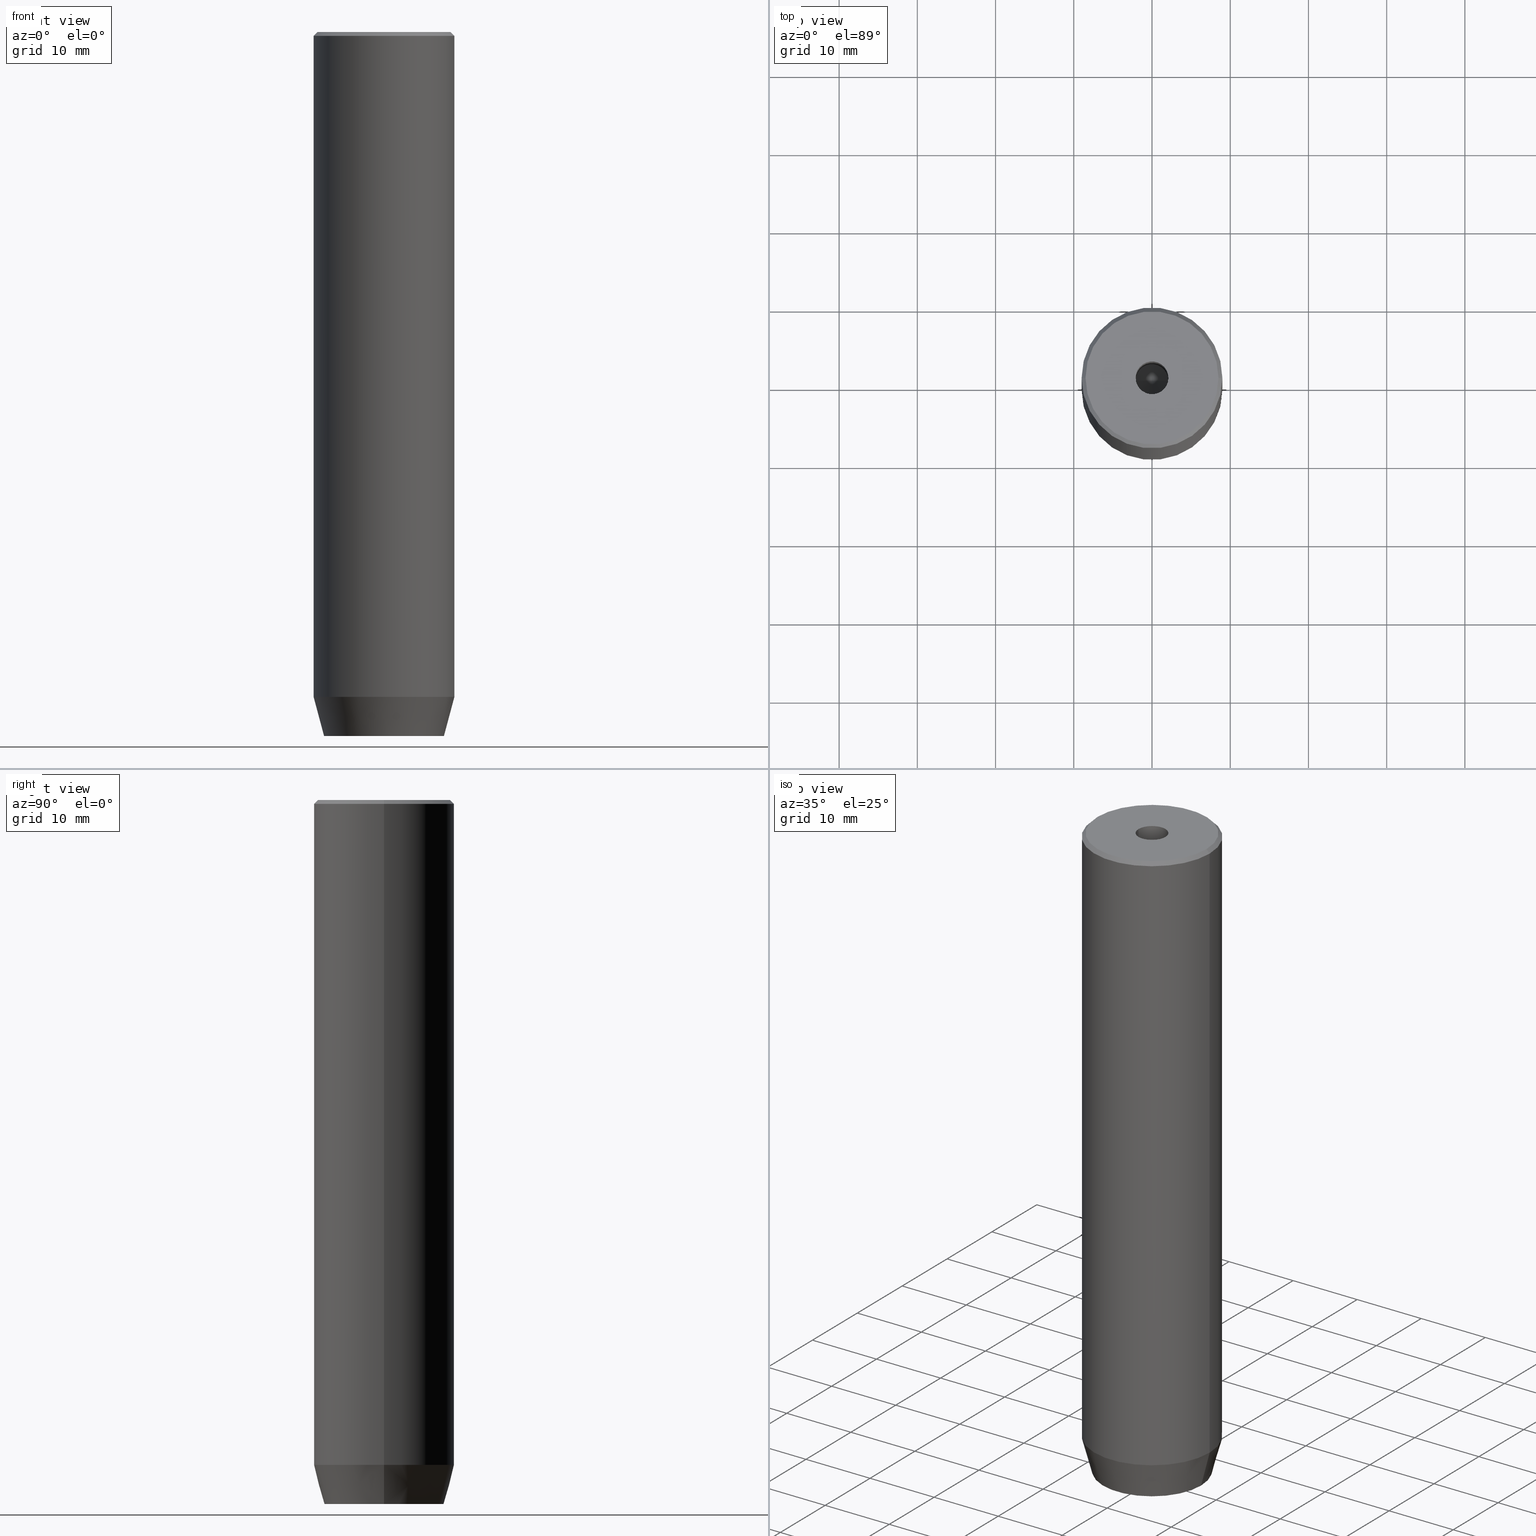
[diagram: canonical four-view strip — front | top / right | iso, engineering-drawing reading convention]
A machine part, canonical four-view strip (front | top / right | iso — engineering-drawing reading convention). The complete STEP part file that produces these views, byte-faithful:
ISO-10303-21;
HEADER;
FILE_DESCRIPTION (( 'STEP AP203' ),
    '1' );
FILE_NAME ('4dfa.STEP',
    '2024-01-02T20:37:19',
    ( '' ),
    ( '' ),
    'SwSTEP 2.0',
    'SolidWorks 2019',
    '' );
FILE_SCHEMA (( 'CONFIG_CONTROL_DESIGN' ));
ENDSEC;

DATA;
#1 = CIRCLE ( 'NONE', #299, 8.500000000000007105 ) ;
#2 = EDGE_LOOP ( 'NONE', ( #330, #153, #549, #481 ) ) ;
#3 = PRODUCT_RELATED_PRODUCT_CATEGORY ( 'detail', '', ( #408 ) ) ;
#4 = LINE ( 'NONE', #494, #233 ) ;
#5 = ORIENTED_EDGE ( 'NONE', *, *, #108, .T. ) ;
#6 = ORIENTED_EDGE ( 'NONE', *, *, #15, .T. ) ;
#7 = DIRECTION ( 'NONE',  ( -0.8660254037844385966, -0.5000000000000001110, 0.000000000000000000 ) ) ;
#8 = CARTESIAN_POINT ( 'NONE',  ( -9.000000000000000000, 1.102182119232617714E-15, -84.99999999999998579 ) ) ;
#9 = CARTESIAN_POINT ( 'NONE',  ( -9.000000000000000000, 1.102182119232617714E-15, -84.99999999999998579 ) ) ;
#10 = AXIS2_PLACEMENT_3D ( 'NONE', #352, #221, #393 ) ;
#11 = EDGE_LOOP ( 'NONE', ( #461, #198, #224, #582 ) ) ;
#12 = DIRECTION ( 'NONE',  ( -0.000000000000000000, -0.000000000000000000, -1.000000000000000000 ) ) ;
#13 = ORIENTED_EDGE ( 'NONE', *, *, #395, .F. ) ;
#14 = DIRECTION ( 'NONE',  ( -0.000000000000000000, -0.000000000000000000, 1.000000000000000000 ) ) ;
#15 = EDGE_CURVE ( 'NONE', #277, #500, #61, .T. ) ;
#16 = CARTESIAN_POINT ( 'NONE',  ( 0.000000000000000000, 0.000000000000000000, 0.000000000000000000 ) ) ;
#17 = EDGE_CURVE ( 'NONE', #40, #560, #451, .T. ) ;
#18 = DIRECTION ( 'NONE',  ( -0.7071067811865451302, 0.000000000000000000, -0.7071067811865500152 ) ) ;
#19 = ORIENTED_EDGE ( 'NONE', *, *, #377, .T. ) ;
#20 = AXIS2_PLACEMENT_3D ( 'NONE', #303, #262, #491 ) ;
#21 = CARTESIAN_POINT ( 'NONE',  ( 9.000000000000000000, 0.000000000000000000, -0.4999999999999952260 ) ) ;
#22 = CARTESIAN_POINT ( 'NONE',  ( 0.000000000000000000, 0.000000000000000000, 0.000000000000000000 ) ) ;
#23 = ORIENTED_EDGE ( 'NONE', *, *, #38, .T. ) ;
#24 = LINE ( 'NONE', #527, #561 ) ;
#25 = DIRECTION ( 'NONE',  ( 0.8660254037844385966, -0.5000000000000001110, 0.000000000000000000 ) ) ;
#26 = CYLINDRICAL_SURFACE ( 'NONE', #324, 9.000000000000000000 ) ;
#27 = VECTOR ( 'NONE', #183, 1000.000000000000000 ) ;
#28 = COORDINATED_UNIVERSAL_TIME_OFFSET ( 1, 0, .AHEAD. ) ;
#29 = VECTOR ( 'NONE', #538, 1000.000000000000114 ) ;
#30 = VECTOR ( 'NONE', #7, 1000.000000000000000 ) ;
#31 = CARTESIAN_POINT ( 'NONE',  ( -2.099999999999996092, 2.571758278209436534E-16, -20.00000000000000000 ) ) ;
#32 = ORIENTED_EDGE ( 'NONE', *, *, #317, .F. ) ;
#33 =( NAMED_UNIT ( * ) PLANE_ANGLE_UNIT ( ) SI_UNIT ( $, .RADIAN. ) );
#34 = DIRECTION ( 'NONE',  ( -1.000000000000000000, -2.503857664561933362E-16, 0.000000000000000000 ) ) ;
#35 = EDGE_LOOP ( 'NONE', ( #138, #521, #581, #144 ) ) ;
#36 = DIRECTION ( 'NONE',  ( 0.000000000000000000, 0.000000000000000000, 1.000000000000000000 ) ) ;
#37 = EDGE_CURVE ( 'NONE', #190, #355, #390, .T. ) ;
#38 = EDGE_CURVE ( 'NONE', #355, #156, #181, .T. ) ;
#39 = FACE_OUTER_BOUND ( 'NONE', #291, .T. ) ;
#40 = VERTEX_POINT ( 'NONE', #133 ) ;
#41 = FACE_OUTER_BOUND ( 'NONE', #449, .T. ) ;
#42 = AXIS2_PLACEMENT_3D ( 'NONE', #58, #520, #117 ) ;
#43 = ORIENTED_EDGE ( 'NONE', *, *, #108, .F. ) ;
#44 = PERSON_AND_ORGANIZATION_ROLE ( 'design_owner' ) ;
#45 = EDGE_CURVE ( 'NONE', #586, #294, #360, .T. ) ;
#46 = DATE_AND_TIME ( #230, #131 ) ;
#47 = LINE ( 'NONE', #93, #456 ) ;
#48 = ORIENTED_EDGE ( 'NONE', *, *, #546, .F. ) ;
#49 = COORDINATED_UNIVERSAL_TIME_OFFSET ( 1, 0, .AHEAD. ) ;
#50 = VECTOR ( 'NONE', #12, 1000.000000000000000 ) ;
#51 = ORIENTED_EDGE ( 'NONE', *, *, #295, .F. ) ;
#52 = APPROVAL_DATE_TIME ( #95, #338 ) ;
#53 = DIRECTION ( 'NONE',  ( 1.000000000000000000, 0.000000000000000000, -0.000000000000000000 ) ) ;
#54 = EDGE_LOOP ( 'NONE', ( #570, #489, #94, #423 ) ) ;
#55 = ORIENTED_EDGE ( 'NONE', *, *, #333, .F. ) ;
#56 = SECURITY_CLASSIFICATION_LEVEL ( 'unclassified' ) ;
#57 = DIRECTION ( 'NONE',  ( -0.000000000000000000, -0.000000000000000000, -1.000000000000000000 ) ) ;
#58 = CARTESIAN_POINT ( 'NONE',  ( 1.500000000000000222, -2.598076211353315568, -87.20000000000000284 ) ) ;
#59 = EDGE_LOOP ( 'NONE', ( #216, #43, #107, #326 ) ) ;
#60 = CARTESIAN_POINT ( 'NONE',  ( -2.168404344971008868E-16, -3.464101615137754830, -87.20000000000000284 ) ) ;
#61 = CIRCLE ( 'NONE', #578, 2.099999999999998757 ) ;
#62 = AXIS2_PLACEMENT_3D ( 'NONE', #340, #522, #72 ) ;
#63 = ORIENTED_EDGE ( 'NONE', *, *, #232, .F. ) ;
#64 = DIRECTION ( 'NONE',  ( 0.000000000000000000, 0.000000000000000000, -1.000000000000000000 ) ) ;
#65 = EDGE_CURVE ( 'NONE', #287, #495, #540, .T. ) ;
#66 = EDGE_CURVE ( 'NONE', #287, #193, #47, .T. ) ;
#67 = DIRECTION ( 'NONE',  ( 1.000000000000000000, 0.000000000000000000, 0.000000000000000000 ) ) ;
#68 = EDGE_LOOP ( 'NONE', ( #159, #511, #6, #48 ) ) ;
#69 = LINE ( 'NONE', #325, #562 ) ;
#70 = DIRECTION ( 'NONE',  ( 0.000000000000000000, 0.000000000000000000, -1.000000000000000000 ) ) ;
#71 = AXIS2_PLACEMENT_3D ( 'NONE', #424, #53, #166 ) ;
#72 = DIRECTION ( 'NONE',  ( 1.000000000000000000, 0.000000000000000000, 0.000000000000000000 ) ) ;
#73 = FACE_OUTER_BOUND ( 'NONE', #11, .T. ) ;
#74 = ORIENTED_EDGE ( 'NONE', *, *, #395, .T. ) ;
#75 = DIRECTION ( 'NONE',  ( 0.000000000000000000, -0.000000000000000000, 1.000000000000000000 ) ) ;
#76 = CARTESIAN_POINT ( 'NONE',  ( -3.000000000000000444, -7.511572993685800087E-16, -87.20000000000000284 ) ) ;
#77 = APPROVAL_STATUS ( 'not_yet_approved' ) ;
#78 = DIRECTION ( 'NONE',  ( -0.000000000000000000, -0.000000000000000000, -1.000000000000000000 ) ) ;
#79 = VECTOR ( 'NONE', #273, 1000.000000000000000 ) ;
#80 = CARTESIAN_POINT ( 'NONE',  ( 3.000000000000000000, 1.732050807568876527, -87.20000000000000284 ) ) ;
#81 = CONICAL_SURFACE ( 'NONE', #122, 2.099999999999996092, 1.029744258676652091 ) ;
#82 = UNCERTAINTY_MEASURE_WITH_UNIT (LENGTH_MEASURE( 1.000000000000000082E-05 ), #580, 'distance_accuracy_value', 'NONE');
#83 = DIRECTION ( 'NONE',  ( 1.000000000000000000, 0.000000000000000000, 0.000000000000000000 ) ) ;
#84 = EDGE_CURVE ( 'NONE', #102, #200, #226, .T. ) ;
#85 = EDGE_CURVE ( 'NONE', #193, #40, #543, .T. ) ;
#86 = DIRECTION ( 'NONE',  ( -0.4999999999999999445, 0.8660254037844387076, 0.000000000000000000 ) ) ;
#87 = DIRECTION ( 'NONE',  ( 0.000000000000000000, -1.000000000000000000, 0.000000000000000000 ) ) ;
#88 = DIRECTION ( 'NONE',  ( -0.2588190451025214611, 3.169619151431774186E-17, 0.9659258262890679791 ) ) ;
#89 = DIRECTION ( 'NONE',  ( 1.000000000000000000, 0.000000000000000000, 0.000000000000000000 ) ) ;
#90 = CIRCLE ( 'NONE', #195, 2.099999999999996092 ) ;
#91 = VECTOR ( 'NONE', #223, 1000.000000000000000 ) ;
#92 = DIRECTION ( 'NONE',  ( -0.000000000000000000, -0.000000000000000000, 1.000000000000000000 ) ) ;
#93 = CARTESIAN_POINT ( 'NONE',  ( 1.500000000000000222, -2.598076211353315568, -87.20000000000000284 ) ) ;
#94 = ORIENTED_EDGE ( 'NONE', *, *, #66, .F. ) ;
#95 = DATE_AND_TIME ( #507, #519 ) ;
#96 = CARTESIAN_POINT ( 'NONE',  ( -1.500000000000000666, -2.598076211353316456, -87.20000000000000284 ) ) ;
#97 = ORIENTED_EDGE ( 'NONE', *, *, #188, .F. ) ;
#98 = ORIENTED_EDGE ( 'NONE', *, *, #188, .T. ) ;
#99 = CIRCLE ( 'NONE', #109, 2.099999999999998757 ) ;
#100 = CARTESIAN_POINT ( 'NONE',  ( -9.000000000000000000, 1.102182119232617714E-15, 0.000000000000000000 ) ) ;
#101 = CONICAL_SURFACE ( 'NONE', #219, 2.099999999999996092, 1.029744258676652091 ) ;
#102 = VERTEX_POINT ( 'NONE', #199 ) ;
#103 = ADVANCED_FACE ( 'NONE', ( #554 ), #334, .F. ) ;
#104 = ORIENTED_EDGE ( 'NONE', *, *, #210, .T. ) ;
#105 = FACE_OUTER_BOUND ( 'NONE', #54, .T. ) ;
#106 = DIRECTION ( 'NONE',  ( -0.5000000000000001110, -0.8660254037844385966, 0.000000000000000000 ) ) ;
#107 = ORIENTED_EDGE ( 'NONE', *, *, #217, .T. ) ;
#108 = EDGE_CURVE ( 'NONE', #506, #452, #1, .T. ) ;
#109 = AXIS2_PLACEMENT_3D ( 'NONE', #114, #292, #473 ) ;
#110 = CARTESIAN_POINT ( 'NONE',  ( 0.000000000000000000, 0.000000000000000000, 0.000000000000000000 ) ) ;
#111 =( GEOMETRIC_REPRESENTATION_CONTEXT ( 3 ) GLOBAL_UNCERTAINTY_ASSIGNED_CONTEXT ( ( #82 ) ) GLOBAL_UNIT_ASSIGNED_CONTEXT ( ( #580, #33, #180 ) ) REPRESENTATION_CONTEXT ( 'NONE', 'WORKASPACE' ) );
#112 = PRODUCT_DEFINITION_SHAPE ( 'NONE', 'NONE',  #266 ) ;
#113 = AXIS2_PLACEMENT_3D ( 'NONE', #16, #381, #472 ) ;
#114 = CARTESIAN_POINT ( 'NONE',  ( 0.000000000000000000, 0.000000000000000000, -1.990051048614449116E-16 ) ) ;
#115 = EDGE_LOOP ( 'NONE', ( #263, #328, #251, #134, #373, #455 ) ) ;
#116 = FACE_OUTER_BOUND ( 'NONE', #335, .T. ) ;
#117 = DIRECTION ( 'NONE',  ( 0.8660254037844385966, 0.5000000000000001110, 0.000000000000000000 ) ) ;
#118 = CARTESIAN_POINT ( 'NONE',  ( 0.000000000000000000, 0.000000000000000000, -20.00000000000000000 ) ) ;
#119 = LINE ( 'NONE', #132, #231 ) ;
#120 = ORIENTED_EDGE ( 'NONE', *, *, #38, .F. ) ;
#121 = AXIS2_PLACEMENT_3D ( 'NONE', #523, #106, #152 ) ;
#122 = AXIS2_PLACEMENT_3D ( 'NONE', #137, #92, #320 ) ;
#123 = CARTESIAN_POINT ( 'NONE',  ( -8.500000000000007105, 0.000000000000000000, 0.000000000000000000 ) ) ;
#124 = DIRECTION ( 'NONE',  ( 0.7071067811865451302, 8.659560562354903276E-17, -0.7071067811865500152 ) ) ;
#125 = PLANE ( 'NONE',  #531 ) ;
#126 = CARTESIAN_POINT ( 'NONE',  ( 3.000000000000000000, 1.732050807568876527, -87.20000000000000284 ) ) ;
#127 = CARTESIAN_POINT ( 'NONE',  ( -3.000000000000000444, -7.511572993685800087E-16, -90.00000000000000000 ) ) ;
#128 = EDGE_CURVE ( 'NONE', #40, #102, #284, .T. ) ;
#129 = DIRECTION ( 'NONE',  ( -0.000000000000000000, -0.000000000000000000, 1.000000000000000000 ) ) ;
#130 = ADVANCED_FACE ( 'NONE', ( #375 ), #400, .T. ) ;
#131 = LOCAL_TIME ( 21, 37, 19.00000000000000000, #182 ) ;
#132 = CARTESIAN_POINT ( 'NONE',  ( -2.099999999999997424, 2.571758278209438506E-16, 0.000000000000000000 ) ) ;
#133 = CARTESIAN_POINT ( 'NONE',  ( -3.000000000000000000, -1.732050807568877859, -87.20000000000000284 ) ) ;
#134 = ORIENTED_EDGE ( 'NONE', *, *, #412, .F. ) ;
#135 = VECTOR ( 'NONE', #357, 1000.000000000000000 ) ;
#136 = VECTOR ( 'NONE', #444, 1000.000000000000000 ) ;
#137 = CARTESIAN_POINT ( 'NONE',  ( 0.000000000000000000, 0.000000000000000000, -20.00000000000000000 ) ) ;
#138 = ORIENTED_EDGE ( 'NONE', *, *, #210, .F. ) ;
#139 = PERSON_AND_ORGANIZATION_ROLE ( 'design_supplier' ) ;
#140 = VERTEX_POINT ( 'NONE', #419 ) ;
#141 = ORIENTED_EDGE ( 'NONE', *, *, #128, .T. ) ;
#142 = APPROVAL_DATE_TIME ( #545, #569 ) ;
#143 = ADVANCED_FACE ( 'NONE', ( #105 ), #513, .F. ) ;
#144 = ORIENTED_EDGE ( 'NONE', *, *, #217, .F. ) ;
#145 = EDGE_CURVE ( 'NONE', #102, #367, #429, .T. ) ;
#146 = APPROVAL_STATUS ( 'not_yet_approved' ) ;
#147 = VECTOR ( 'NONE', #197, 1000.000000000000000 ) ;
#148 = CARTESIAN_POINT ( 'NONE',  ( 8.500000000000007105, 1.071565949253934321E-15, 0.000000000000000000 ) ) ;
#149 = VECTOR ( 'NONE', #225, 1000.000000000000000 ) ;
#150 = CARTESIAN_POINT ( 'NONE',  ( -3.000000000000000444, -7.511572993685800087E-16, -87.20000000000000284 ) ) ;
#151 = CC_DESIGN_DATE_AND_TIME_ASSIGNMENT ( #322, #315, ( #468 ) ) ;
#152 = DIRECTION ( 'NONE',  ( 0.8660254037844385966, -0.5000000000000001110, 0.000000000000000000 ) ) ;
#153 = ORIENTED_EDGE ( 'NONE', *, *, #333, .T. ) ;
#154 = ADVANCED_FACE ( 'NONE', ( #240 ), #288, .T. ) ;
#155 = CARTESIAN_POINT ( 'NONE',  ( 0.000000000000000000, 0.000000000000000000, -84.99999999999998579 ) ) ;
#156 = VERTEX_POINT ( 'NONE', #9 ) ;
#157 = CIRCLE ( 'NONE', #467, 7.660254037844380193 ) ;
#158 = CC_DESIGN_APPROVAL ( #569, ( #266 ) ) ;
#159 = ORIENTED_EDGE ( 'NONE', *, *, #293, .F. ) ;
#160 = CYLINDRICAL_SURFACE ( 'NONE', #332, 9.000000000000000000 ) ;
#161 = DIRECTION ( 'NONE',  ( -0.000000000000000000, -0.000000000000000000, 1.000000000000000000 ) ) ;
#162 = ORIENTED_EDGE ( 'NONE', *, *, #485, .T. ) ;
#163 = FACE_OUTER_BOUND ( 'NONE', #343, .T. ) ;
#164 = DIRECTION ( 'NONE',  ( -0.000000000000000000, -0.000000000000000000, 1.000000000000000000 ) ) ;
#165 = CC_DESIGN_PERSON_AND_ORGANIZATION_ASSIGNMENT ( #282, #453, ( #468 ) ) ;
#166 = DIRECTION ( 'NONE',  ( -0.000000000000000000, 0.000000000000000000, -1.000000000000000000 ) ) ;
#167 = DIRECTION ( 'NONE',  ( -0.000000000000000000, -0.000000000000000000, 1.000000000000000000 ) ) ;
#168 = AXIS2_PLACEMENT_3D ( 'NONE', #575, #307, #478 ) ;
#169 = VECTOR ( 'NONE', #57, 1000.000000000000000 ) ;
#170 = DIRECTION ( 'NONE',  ( -0.000000000000000000, -0.000000000000000000, 1.000000000000000000 ) ) ;
#171 = CARTESIAN_POINT ( 'NONE',  ( -9.000000000000000000, 1.102182119232617714E-15, -0.4999999999999952260 ) ) ;
#172 = EDGE_CURVE ( 'NONE', #515, #503, #383, .T. ) ;
#173 = DIRECTION ( 'NONE',  ( 0.8660254037844387076, 0.4999999999999999445, 0.000000000000000000 ) ) ;
#174 = FACE_OUTER_BOUND ( 'NONE', #301, .T. ) ;
#175 = PLANE ( 'NONE',  #238 ) ;
#176 = AXIS2_PLACEMENT_3D ( 'NONE', #179, #508, #234 ) ;
#177 = LINE ( 'NONE', #493, #149 ) ;
#178 = LOCAL_TIME ( 21, 37, 19.00000000000000000, #501 ) ;
#179 = CARTESIAN_POINT ( 'NONE',  ( 0.000000000000000000, 0.000000000000000000, -90.00000000000000000 ) ) ;
#180 =( NAMED_UNIT ( * ) SI_UNIT ( $, .STERADIAN. ) SOLID_ANGLE_UNIT ( ) );
#181 = LINE ( 'NONE', #8, #260 ) ;
#182 = COORDINATED_UNIVERSAL_TIME_OFFSET ( 1, 0, .AHEAD. ) ;
#183 = DIRECTION ( 'NONE',  ( -0.000000000000000000, -0.000000000000000000, -1.000000000000000000 ) ) ;
#184 = ORIENTED_EDGE ( 'NONE', *, *, #232, .T. ) ;
#185 = PERSON_AND_ORGANIZATION_ROLE ( 'creator' ) ;
#186 = APPLICATION_CONTEXT ( 'configuration controlled 3d designs of mechanical parts and assemblies' ) ;
#187 = ADVANCED_FACE ( 'NONE', ( #372 ), #202, .F. ) ;
#188 = EDGE_CURVE ( 'NONE', #500, #277, #99, .T. ) ;
#189 = EDGE_LOOP ( 'NONE', ( #162, #465, #236, #19 ) ) ;
#190 = VERTEX_POINT ( 'NONE', #469 ) ;
#191 = SHAPE_DEFINITION_REPRESENTATION ( #112, #321 ) ;
#192 = DIRECTION ( 'NONE',  ( -0.000000000000000000, -0.000000000000000000, 1.000000000000000000 ) ) ;
#193 = VERTEX_POINT ( 'NONE', #60 ) ;
#194 = DATE_AND_TIME ( #365, #178 ) ;
#195 = AXIS2_PLACEMENT_3D ( 'NONE', #532, #215, #571 ) ;
#196 = AXIS2_PLACEMENT_3D ( 'NONE', #296, #304, #433 ) ;
#197 = DIRECTION ( 'NONE',  ( -0.000000000000000000, -0.000000000000000000, 1.000000000000000000 ) ) ;
#198 = ORIENTED_EDGE ( 'NONE', *, *, #274, .F. ) ;
#199 = CARTESIAN_POINT ( 'NONE',  ( -3.000000000000000888, 1.732050807568876527, -87.20000000000000284 ) ) ;
#200 = VERTEX_POINT ( 'NONE', #470 ) ;
#201 = CC_DESIGN_PERSON_AND_ORGANIZATION_ASSIGNMENT ( #496, #44, ( #408 ) ) ;
#202 = PLANE ( 'NONE',  #121 ) ;
#203 = ORIENTED_EDGE ( 'NONE', *, *, #37, .F. ) ;
#204 = PLANE ( 'NONE',  #196 ) ;
#205 = AXIS2_PLACEMENT_3D ( 'NONE', #516, #64, #337 ) ;
#206 = LINE ( 'NONE', #568, #407 ) ;
#207 = ORIENTED_EDGE ( 'NONE', *, *, #172, .F. ) ;
#208 = CARTESIAN_POINT ( 'NONE',  ( 9.000000000000000000, 0.000000000000000000, -84.99999999999998579 ) ) ;
#209 = ADVANCED_FACE ( 'NONE', ( #286, #327 ), #329, .T. ) ;
#210 = EDGE_CURVE ( 'NONE', #452, #506, #218, .T. ) ;
#211 = ORIENTED_EDGE ( 'NONE', *, *, #247, .F. ) ;
#212 = CARTESIAN_POINT ( 'NONE',  ( 2.099999999999998757, 0.000000000000000000, -1.990051048614449116E-16 ) ) ;
#213 = CARTESIAN_POINT ( 'NONE',  ( 0.000000000000000000, 0.000000000000000000, -20.00000000000000000 ) ) ;
#214 = DIRECTION ( 'NONE',  ( 1.000000000000000000, 0.000000000000000000, 0.000000000000000000 ) ) ;
#215 = DIRECTION ( 'NONE',  ( -0.000000000000000000, -0.000000000000000000, 1.000000000000000000 ) ) ;
#216 = ORIENTED_EDGE ( 'NONE', *, *, #272, .F. ) ;
#217 = EDGE_CURVE ( 'NONE', #506, #323, #245, .T. ) ;
#218 = CIRCLE ( 'NONE', #448, 8.500000000000007105 ) ;
#219 = AXIS2_PLACEMENT_3D ( 'NONE', #118, #192, #369 ) ;
#220 = CARTESIAN_POINT ( 'NONE',  ( 3.000000000000000000, -1.732050807568876527, -87.20000000000000284 ) ) ;
#221 = DIRECTION ( 'NONE',  ( -0.000000000000000000, -0.000000000000000000, 1.000000000000000000 ) ) ;
#222 = CARTESIAN_POINT ( 'NONE',  ( 0.000000000000000000, 0.000000000000000000, -87.20000000000000284 ) ) ;
#223 = DIRECTION ( 'NONE',  ( -0.000000000000000000, -0.000000000000000000, 1.000000000000000000 ) ) ;
#224 = ORIENTED_EDGE ( 'NONE', *, *, #84, .F. ) ;
#225 = DIRECTION ( 'NONE',  ( -0.000000000000000000, -0.000000000000000000, 1.000000000000000000 ) ) ;
#226 = LINE ( 'NONE', #405, #476 ) ;
#227 = PERSON_AND_ORGANIZATION ( #454, #239 ) ;
#228 = DIRECTION ( 'NONE',  ( -0.8660254037844385966, -0.5000000000000001110, 0.000000000000000000 ) ) ;
#229 = EDGE_CURVE ( 'NONE', #367, #586, #206, .T. ) ;
#230 = CALENDAR_DATE ( 2024, 2, 1 ) ;
#231 = VECTOR ( 'NONE', #394, 1000.000000000000000 ) ;
#232 = EDGE_CURVE ( 'NONE', #355, #190, #157, .T. ) ;
#233 = VECTOR ( 'NONE', #447, 1000.000000000000000 ) ;
#234 = DIRECTION ( 'NONE',  ( 1.000000000000000000, 0.000000000000000000, 0.000000000000000000 ) ) ;
#235 = DIRECTION ( 'NONE',  ( 1.000000000000000000, 0.000000000000000000, 0.000000000000000000 ) ) ;
#236 = ORIENTED_EDGE ( 'NONE', *, *, #579, .F. ) ;
#237 = APPROVAL_STATUS ( 'not_yet_approved' ) ;
#238 = AXIS2_PLACEMENT_3D ( 'NONE', #346, #86, #480 ) ;
#239 = ORGANIZATION ( 'NEUR�EN�', 'NEUR�EN�', '' ) ;
#240 = FACE_OUTER_BOUND ( 'NONE', #281, .T. ) ;
#241 = ORIENTED_EDGE ( 'NONE', *, *, #311, .T. ) ;
#242 = DIRECTION ( 'NONE',  ( 1.000000000000000000, 0.000000000000000000, 0.000000000000000000 ) ) ;
#243 = ORIENTED_EDGE ( 'NONE', *, *, #564, .T. ) ;
#244 = FACE_OUTER_BOUND ( 'NONE', #189, .T. ) ;
#245 = LINE ( 'NONE', #425, #279 ) ;
#246 = ORIENTED_EDGE ( 'NONE', *, *, #420, .T. ) ;
#247 = EDGE_CURVE ( 'NONE', #471, #414, #438, .T. ) ;
#248 = LINE ( 'NONE', #344, #401 ) ;
#249 = ADVANCED_FACE ( 'NONE', ( #445 ), #577, .F. ) ;
#250 = CC_DESIGN_APPROVAL ( #253, ( #450 ) ) ;
#251 = ORIENTED_EDGE ( 'NONE', *, *, #524, .F. ) ;
#252 = CARTESIAN_POINT ( 'NONE',  ( 2.099999999999996092, 0.000000000000000000, -20.00000000000000000 ) ) ;
#253 = APPROVAL ( #237, 'NEUR�EN�' ) ;
#254 = CARTESIAN_POINT ( 'NONE',  ( -2.099999999999998757, 2.571758278209440478E-16, -1.990051048614449116E-16 ) ) ;
#255 = EDGE_LOOP ( 'NONE', ( #430, #426, #380, #364 ) ) ;
#256 = EDGE_CURVE ( 'NONE', #414, #277, #119, .T. ) ;
#257 = DIRECTION ( 'NONE',  ( 2.503857664561933362E-16, -1.000000000000000000, 0.000000000000000000 ) ) ;
#258 = APPLICATION_PROTOCOL_DEFINITION ( 'international standard', 'config_control_design', 1994, #186 ) ;
#259 = DIRECTION ( 'NONE',  ( -0.000000000000000000, -0.000000000000000000, -1.000000000000000000 ) ) ;
#260 = VECTOR ( 'NONE', #88, 1000.000000000000114 ) ;
#261 = CC_DESIGN_SECURITY_CLASSIFICATION ( #468, ( #450 ) ) ;
#262 = DIRECTION ( 'NONE',  ( -0.000000000000000000, -0.000000000000000000, 1.000000000000000000 ) ) ;
#263 = ORIENTED_EDGE ( 'NONE', *, *, #229, .F. ) ;
#264 = CARTESIAN_POINT ( 'NONE',  ( -7.660254037844380193, 1.020146339021394272E-15, -90.00000000000000000 ) ) ;
#265 = ORIENTED_EDGE ( 'NONE', *, *, #274, .T. ) ;
#266 = PRODUCT_DEFINITION ( 'NEZN�M�', '', #450, #341 ) ;
#267 = CARTESIAN_POINT ( 'NONE',  ( 1.500000000000000222, 2.598076211353315568, -90.00000000000000000 ) ) ;
#268 = AXIS2_PLACEMENT_3D ( 'NONE', #110, #70, #558 ) ;
#269 = CIRCLE ( 'NONE', #409, 9.000000000000000000 ) ;
#270 = ORIENTED_EDGE ( 'NONE', *, *, #295, .T. ) ;
#271 = APPROVAL_ROLE ( '' ) ;
#272 = EDGE_CURVE ( 'NONE', #452, #503, #24, .T. ) ;
#273 = DIRECTION ( 'NONE',  ( -0.8660254037844385966, 0.5000000000000001110, 0.000000000000000000 ) ) ;
#274 = EDGE_CURVE ( 'NONE', #200, #586, #300, .T. ) ;
#275 = MANIFOLD_SOLID_BREP ( 'Vrt�k z�vitn�ku pro M5 z�vit1', #314 ) ;
#276 = LINE ( 'NONE', #100, #91 ) ;
#277 = VERTEX_POINT ( 'NONE', #254 ) ;
#278 = EDGE_LOOP ( 'NONE', ( #211, #74, #241 ) ) ;
#279 = VECTOR ( 'NONE', #18, 1000.000000000000114 ) ;
#280 = EDGE_LOOP ( 'NONE', ( #97, #525 ) ) ;
#281 = EDGE_LOOP ( 'NONE', ( #120, #184, #270, #55 ) ) ;
#282 = PERSON_AND_ORGANIZATION ( #454, #239 ) ;
#283 = CARTESIAN_POINT ( 'NONE',  ( 3.000000000000000000, -1.732050807568876527, -90.00000000000000000 ) ) ;
#284 = LINE ( 'NONE', #150, #518 ) ;
#285 = ORIENTED_EDGE ( 'NONE', *, *, #66, .T. ) ;
#286 = FACE_BOUND ( 'NONE', #115, .T. ) ;
#287 = VERTEX_POINT ( 'NONE', #220 ) ;
#288 = CONICAL_SURFACE ( 'NONE', #345, 9.000000000000000000, 0.2617993877991502405 ) ;
#289 = LOCAL_TIME ( 21, 37, 19.00000000000000000, #49 ) ;
#290 = DIRECTION ( 'NONE',  ( -0.000000000000000000, -0.000000000000000000, 1.000000000000000000 ) ) ;
#291 = EDGE_LOOP ( 'NONE', ( #492, #417, #246, #207 ) ) ;
#292 = DIRECTION ( 'NONE',  ( -0.000000000000000000, -0.000000000000000000, 1.000000000000000000 ) ) ;
#293 = EDGE_CURVE ( 'NONE', #414, #514, #90, .T. ) ;
#294 = VERTEX_POINT ( 'NONE', #310 ) ;
#295 = EDGE_CURVE ( 'NONE', #190, #515, #432, .T. ) ;
#296 = CARTESIAN_POINT ( 'NONE',  ( 1.500000000000000222, 2.598076211353315568, -87.20000000000000284 ) ) ;
#297 = CARTESIAN_POINT ( 'NONE',  ( -3.000000000000000888, 1.732050807568876527, -87.20000000000000284 ) ) ;
#298 = FACE_OUTER_BOUND ( 'NONE', #35, .T. ) ;
#299 = AXIS2_PLACEMENT_3D ( 'NONE', #422, #14, #565 ) ;
#300 = LINE ( 'NONE', #536, #542 ) ;
#301 = EDGE_LOOP ( 'NONE', ( #460, #23, #32, #51 ) ) ;
#302 = DIRECTION ( 'NONE',  ( -0.8660254037844385966, 0.5000000000000001110, 0.000000000000000000 ) ) ;
#303 = CARTESIAN_POINT ( 'NONE',  ( 0.000000000000000000, 0.000000000000000000, -84.99999999999998579 ) ) ;
#304 = DIRECTION ( 'NONE',  ( 0.5000000000000001110, 0.8660254037844385966, -0.000000000000000000 ) ) ;
#305 = DIRECTION ( 'NONE',  ( 1.000000000000000000, 0.000000000000000000, 0.000000000000000000 ) ) ;
#306 = CARTESIAN_POINT ( 'NONE',  ( 0.000000000000000000, 3.464101615137754386, -90.00000000000000000 ) ) ;
#307 = DIRECTION ( 'NONE',  ( -0.000000000000000000, -0.000000000000000000, 1.000000000000000000 ) ) ;
#308 = AXIS2_PLACEMENT_3D ( 'NONE', #213, #167, #83 ) ;
#309 = CARTESIAN_POINT ( 'NONE',  ( 0.000000000000000000, 0.000000000000000000, 0.000000000000000000 ) ) ;
#310 = CARTESIAN_POINT ( 'NONE',  ( 3.000000000000000000, 1.732050807568876527, -90.00000000000000000 ) ) ;
#311 = EDGE_CURVE ( 'NONE', #514, #414, #418, .T. ) ;
#312 = DIRECTION ( 'NONE',  ( 1.000000000000000000, 0.000000000000000000, 0.000000000000000000 ) ) ;
#313 = CARTESIAN_POINT ( 'NONE',  ( 3.000000000000000000, -1.732050807568876527, -87.20000000000000284 ) ) ;
#314 = CLOSED_SHELL ( 'NONE', ( #103, #378, #459, #585, #358, #209, #526, #505, #154, #130, #353, #354, #187, #143, #504, #440, #547, #441, #249 ) ) ;
#315 = DATE_TIME_ROLE ( 'classification_date' ) ;
#316 = VECTOR ( 'NONE', #87, 1000.000000000000000 ) ;
#317 = EDGE_CURVE ( 'NONE', #515, #156, #382, .T. ) ;
#318 = EDGE_LOOP ( 'NONE', ( #384, #370, #541, #98 ) ) ;
#319 = PERSON_AND_ORGANIZATION ( #454, #239 ) ;
#320 = DIRECTION ( 'NONE',  ( 1.000000000000000000, 0.000000000000000000, 0.000000000000000000 ) ) ;
#321 = ADVANCED_BREP_SHAPE_REPRESENTATION ( '4dfa', ( #275, #347 ), #111 ) ;
#322 = DATE_AND_TIME ( #550, #289 ) ;
#323 = VERTEX_POINT ( 'NONE', #171 ) ;
#324 = AXIS2_PLACEMENT_3D ( 'NONE', #349, #164, #397 ) ;
#325 = CARTESIAN_POINT ( 'NONE',  ( 1.500000000000000222, 2.598076211353315568, -87.20000000000000284 ) ) ;
#326 = ORIENTED_EDGE ( 'NONE', *, *, #534, .F. ) ;
#327 = FACE_OUTER_BOUND ( 'NONE', #517, .T. ) ;
#328 = ORIENTED_EDGE ( 'NONE', *, *, #564, .F. ) ;
#329 = PLANE ( 'NONE',  #205 ) ;
#330 = ORIENTED_EDGE ( 'NONE', *, *, #396, .F. ) ;
#331 = AXIS2_PLACEMENT_3D ( 'NONE', #22, #161, #242 ) ;
#332 = AXIS2_PLACEMENT_3D ( 'NONE', #475, #170, #336 ) ;
#333 = EDGE_CURVE ( 'NONE', #156, #515, #537, .T. ) ;
#334 = CYLINDRICAL_SURFACE ( 'NONE', #331, 2.099999999999997424 ) ;
#335 = EDGE_LOOP ( 'NONE', ( #555, #410, #421, #265 ) ) ;
#336 = DIRECTION ( 'NONE',  ( 1.000000000000000000, 0.000000000000000000, 0.000000000000000000 ) ) ;
#337 = DIRECTION ( 'NONE',  ( -1.000000000000000000, 0.000000000000000000, -0.000000000000000000 ) ) ;
#338 = APPROVAL ( #146, 'NEUR�EN�' ) ;
#339 = EDGE_LOOP ( 'NONE', ( #13, #556, #403 ) ) ;
#340 = CARTESIAN_POINT ( 'NONE',  ( 0.000000000000000000, 0.000000000000000000, -0.4999999999999952260 ) ) ;
#341 = DESIGN_CONTEXT ( 'detailed design', #502, 'design' ) ;
#342 = CARTESIAN_POINT ( 'NONE',  ( -3.000000000000000888, 1.732050807568876527, -90.00000000000000000 ) ) ;
#343 = EDGE_LOOP ( 'NONE', ( #5, #104 ) ) ;
#344 = CARTESIAN_POINT ( 'NONE',  ( 3.000000000000000000, 0.000000000000000000, -90.00000000000000000 ) ) ;
#345 = AXIS2_PLACEMENT_3D ( 'NONE', #155, #290, #235 ) ;
#346 = CARTESIAN_POINT ( 'NONE',  ( -1.499999999999999556, 2.598076211353316012, -87.20000000000000284 ) ) ;
#347 = AXIS2_PLACEMENT_3D ( 'NONE', #309, #36, #399 ) ;
#348 = DIRECTION ( 'NONE',  ( 0.000000000000000000, -1.000000000000000000, 0.000000000000000000 ) ) ;
#349 = CARTESIAN_POINT ( 'NONE',  ( 0.000000000000000000, 0.000000000000000000, 0.000000000000000000 ) ) ;
#350 = CARTESIAN_POINT ( 'NONE',  ( -3.000000000000000000, -1.732050807568877859, -90.00000000000000000 ) ) ;
#351 = DIRECTION ( 'NONE',  ( -0.000000000000000000, -0.000000000000000000, 1.000000000000000000 ) ) ;
#352 = CARTESIAN_POINT ( 'NONE',  ( 0.000000000000000000, 0.000000000000000000, -84.99999999999998579 ) ) ;
#353 = ADVANCED_FACE ( 'NONE', ( #73 ), #175, .F. ) ;
#354 = ADVANCED_FACE ( 'NONE', ( #434 ), #443, .F. ) ;
#355 = VERTEX_POINT ( 'NONE', #264 ) ;
#356 = LINE ( 'NONE', #442, #316 ) ;
#357 = DIRECTION ( 'NONE',  ( 0.8660254037844385966, -0.5000000000000001110, 0.000000000000000000 ) ) ;
#358 = ADVANCED_FACE ( 'NONE', ( #39 ), #26, .T. ) ;
#359 = APPLICATION_PROTOCOL_DEFINITION ( 'international standard', 'config_control_design', 1994, #502 ) ;
#360 = LINE ( 'NONE', #267, #135 ) ;
#361 = VECTOR ( 'NONE', #551, 1000.000000000000000 ) ;
#362 = PERSON_AND_ORGANIZATION_ROLE ( 'creator' ) ;
#363 = CC_DESIGN_DATE_AND_TIME_ASSIGNMENT ( #194, #368, ( #266 ) ) ;
#364 = ORIENTED_EDGE ( 'NONE', *, *, #483, .T. ) ;
#365 = CALENDAR_DATE ( 2024, 2, 1 ) ;
#366 = CARTESIAN_POINT ( 'NONE',  ( 0.000000000000000000, 0.000000000000000000, -1.990051048614449116E-16 ) ) ;
#367 = VERTEX_POINT ( 'NONE', #342 ) ;
#368 = DATE_TIME_ROLE ( 'creation_date' ) ;
#369 = DIRECTION ( 'NONE',  ( 1.000000000000000000, 0.000000000000000000, 0.000000000000000000 ) ) ;
#370 = ORIENTED_EDGE ( 'NONE', *, *, #311, .F. ) ;
#371 = APPROVAL_ROLE ( '' ) ;
#372 = FACE_OUTER_BOUND ( 'NONE', #255, .T. ) ;
#373 = ORIENTED_EDGE ( 'NONE', *, *, #485, .F. ) ;
#374 = COORDINATED_UNIVERSAL_TIME_OFFSET ( 1, 0, .AHEAD. ) ;
#375 = FACE_OUTER_BOUND ( 'NONE', #59, .T. ) ;
#376 = ORIENTED_EDGE ( 'NONE', *, *, #84, .T. ) ;
#377 = EDGE_CURVE ( 'NONE', #566, #294, #535, .T. ) ;
#378 = ADVANCED_FACE ( 'NONE', ( #484 ), #81, .F. ) ;
#379 = CARTESIAN_POINT ( 'NONE',  ( 0.000000000000000000, 0.000000000000000000, 0.000000000000000000 ) ) ;
#380 = ORIENTED_EDGE ( 'NONE', *, *, #85, .F. ) ;
#381 = DIRECTION ( 'NONE',  ( 0.000000000000000000, 0.000000000000000000, -1.000000000000000000 ) ) ;
#382 = CIRCLE ( 'NONE', #168, 9.000000000000000000 ) ;
#383 = LINE ( 'NONE', #416, #147 ) ;
#384 = ORIENTED_EDGE ( 'NONE', *, *, #256, .F. ) ;
#385 = FACE_OUTER_BOUND ( 'NONE', #278, .T. ) ;
#386 = CARTESIAN_POINT ( 'NONE',  ( 0.000000000000000000, 0.000000000000000000, -90.00000000000000000 ) ) ;
#387 = ORIENTED_EDGE ( 'NONE', *, *, #128, .F. ) ;
#388 = CARTESIAN_POINT ( 'NONE',  ( 9.000000000000000000, 0.000000000000000000, -84.99999999999998579 ) ) ;
#389 = CARTESIAN_POINT ( 'NONE',  ( 0.000000000000000000, 0.000000000000000000, -0.4999999999999952260 ) ) ;
#390 = CIRCLE ( 'NONE', #176, 7.660254037844380193 ) ;
#391 = DIRECTION ( 'NONE',  ( -0.8571673007021111124, 1.049727191138617217E-16, 0.5150380749100562650 ) ) ;
#392 = AXIS2_PLACEMENT_3D ( 'NONE', #222, #583, #402 ) ;
#393 = DIRECTION ( 'NONE',  ( 1.000000000000000000, 0.000000000000000000, 0.000000000000000000 ) ) ;
#394 = DIRECTION ( 'NONE',  ( -0.000000000000000000, -0.000000000000000000, 1.000000000000000000 ) ) ;
#395 = EDGE_CURVE ( 'NONE', #471, #514, #4, .T. ) ;
#396 = EDGE_CURVE ( 'NONE', #156, #323, #276, .T. ) ;
#397 = DIRECTION ( 'NONE',  ( 1.000000000000000000, 0.000000000000000000, 0.000000000000000000 ) ) ;
#398 = ORIENTED_EDGE ( 'NONE', *, *, #579, .T. ) ;
#399 = DIRECTION ( 'NONE',  ( 1.000000000000000000, 0.000000000000000000, 0.000000000000000000 ) ) ;
#400 = CONICAL_SURFACE ( 'NONE', #268, 8.500000000000007105, 0.7853981633974447263 ) ;
#401 = VECTOR ( 'NONE', #348, 1000.000000000000000 ) ;
#402 = DIRECTION ( 'NONE',  ( -1.000000000000000000, 0.000000000000000000, -0.000000000000000000 ) ) ;
#403 = ORIENTED_EDGE ( 'NONE', *, *, #293, .T. ) ;
#404 = EDGE_LOOP ( 'NONE', ( #243, #528, #387, #552 ) ) ;
#405 = CARTESIAN_POINT ( 'NONE',  ( -1.499999999999999556, 2.598076211353316012, -87.20000000000000284 ) ) ;
#406 = PERSON_AND_ORGANIZATION ( #454, #239 ) ;
#407 = VECTOR ( 'NONE', #173, 999.9999999999998863 ) ;
#408 = PRODUCT ( '4dfa', '4dfa', '', ( #539 ) ) ;
#409 = AXIS2_PLACEMENT_3D ( 'NONE', #389, #572, #89 ) ;
#410 = ORIENTED_EDGE ( 'NONE', *, *, #377, .F. ) ;
#411 = PERSON_AND_ORGANIZATION ( #454, #239 ) ;
#412 = EDGE_CURVE ( 'NONE', #495, #140, #497, .T. ) ;
#413 = LINE ( 'NONE', #567, #544 ) ;
#414 = VERTEX_POINT ( 'NONE', #530 ) ;
#415 = PERSON_AND_ORGANIZATION ( #454, #239 ) ;
#416 = CARTESIAN_POINT ( 'NONE',  ( 9.000000000000000000, 0.000000000000000000, 0.000000000000000000 ) ) ;
#417 = ORIENTED_EDGE ( 'NONE', *, *, #396, .T. ) ;
#418 = CIRCLE ( 'NONE', #308, 2.099999999999996092 ) ;
#419 = CARTESIAN_POINT ( 'NONE',  ( -2.168404344971008868E-16, -3.464101615137754830, -90.00000000000000000 ) ) ;
#420 = EDGE_CURVE ( 'NONE', #323, #503, #499, .T. ) ;
#421 = ORIENTED_EDGE ( 'NONE', *, *, #457, .F. ) ;
#422 = CARTESIAN_POINT ( 'NONE',  ( 0.000000000000000000, 0.000000000000000000, 0.000000000000000000 ) ) ;
#423 = ORIENTED_EDGE ( 'NONE', *, *, #65, .T. ) ;
#424 = CARTESIAN_POINT ( 'NONE',  ( 3.000000000000000000, 0.000000000000000000, -87.20000000000000284 ) ) ;
#425 = CARTESIAN_POINT ( 'NONE',  ( -8.500000000000007105, 0.000000000000000000, 0.000000000000000000 ) ) ;
#426 = ORIENTED_EDGE ( 'NONE', *, *, #17, .F. ) ;
#427 = CARTESIAN_POINT ( 'NONE',  ( -2.168404344971008868E-16, -3.464101615137754830, -87.20000000000000284 ) ) ;
#428 = CONICAL_SURFACE ( 'NONE', #113, 8.500000000000007105, 0.7853981633974447263 ) ;
#429 = LINE ( 'NONE', #297, #50 ) ;
#430 = ORIENTED_EDGE ( 'NONE', *, *, #524, .T. ) ;
#431 = FACE_BOUND ( 'NONE', #280, .T. ) ;
#432 = LINE ( 'NONE', #388, #29 ) ;
#433 = DIRECTION ( 'NONE',  ( -0.8660254037844385966, 0.5000000000000001110, 0.000000000000000000 ) ) ;
#434 = FACE_OUTER_BOUND ( 'NONE', #404, .T. ) ;
#435 = APPROVAL_ROLE ( '' ) ;
#436 = AXIS2_PLACEMENT_3D ( 'NONE', #488, #351, #305 ) ;
#437 = APPROVAL_PERSON_ORGANIZATION ( #482, #569, #435 ) ;
#438 = LINE ( 'NONE', #31, #487 ) ;
#439 = CONICAL_SURFACE ( 'NONE', #10, 9.000000000000000000, 0.2617993877991502405 ) ;
#440 = ADVANCED_FACE ( 'NONE', ( #116 ), #204, .F. ) ;
#441 = ADVANCED_FACE ( 'NONE', ( #385 ), #101, .F. ) ;
#442 = CARTESIAN_POINT ( 'NONE',  ( 3.000000000000000000, 0.000000000000000000, -87.20000000000000284 ) ) ;
#443 = PLANE ( 'NONE',  #509 ) ;
#444 = DIRECTION ( 'NONE',  ( -2.503857664561932376E-16, 1.000000000000000000, 0.000000000000000000 ) ) ;
#445 = FACE_OUTER_BOUND ( 'NONE', #318, .T. ) ;
#446 = PLANE ( 'NONE',  #392 ) ;
#447 = DIRECTION ( 'NONE',  ( 0.8571673007021111124, 0.000000000000000000, 0.5150380749100562650 ) ) ;
#448 = AXIS2_PLACEMENT_3D ( 'NONE', #379, #559, #67 ) ;
#449 = EDGE_LOOP ( 'NONE', ( #376, #466, #398, #285, #474, #141 ) ) ;
#450 = PRODUCT_DEFINITION_FORMATION_WITH_SPECIFIED_SOURCE ( 'LIBOVOLN�', '', #408, .NOT_KNOWN. ) ;
#451 = LINE ( 'NONE', #498, #361 ) ;
#452 = VERTEX_POINT ( 'NONE', #148 ) ;
#453 = PERSON_AND_ORGANIZATION_ROLE ( 'classification_officer' ) ;
#454 = PERSON ( 'NEUR�EN�', 'NEUR�EN�', 'NEUR�EN�', ('NEUR�EN�'), ('NEUR�EN�'), ('NEUR�EN�') ) ;
#455 = ORIENTED_EDGE ( 'NONE', *, *, #45, .F. ) ;
#456 = VECTOR ( 'NONE', #228, 1000.000000000000000 ) ;
#457 = EDGE_CURVE ( 'NONE', #200, #566, #69, .T. ) ;
#458 = APPROVAL_PERSON_ORGANIZATION ( #415, #338, #371 ) ;
#459 = ADVANCED_FACE ( 'NONE', ( #298 ), #428, .T. ) ;
#460 = ORIENTED_EDGE ( 'NONE', *, *, #37, .T. ) ;
#461 = ORIENTED_EDGE ( 'NONE', *, *, #229, .T. ) ;
#462 = CC_DESIGN_PERSON_AND_ORGANIZATION_ASSIGNMENT ( #319, #185, ( #266 ) ) ;
#463 = PLANE ( 'NONE',  #71 ) ;
#464 = DIRECTION ( 'NONE',  ( -2.503857664561932376E-16, 1.000000000000000000, 0.000000000000000000 ) ) ;
#465 = ORIENTED_EDGE ( 'NONE', *, *, #65, .F. ) ;
#466 = ORIENTED_EDGE ( 'NONE', *, *, #457, .T. ) ;
#467 = AXIS2_PLACEMENT_3D ( 'NONE', #386, #129, #576 ) ;
#468 = SECURITY_CLASSIFICATION ( '', '', #56 ) ;
#469 = CARTESIAN_POINT ( 'NONE',  ( 7.660254037844380193, 0.000000000000000000, -90.00000000000000000 ) ) ;
#470 = CARTESIAN_POINT ( 'NONE',  ( -1.084202172485504434E-16, 3.464101615137754830, -87.20000000000000284 ) ) ;
#471 = VERTEX_POINT ( 'NONE', #563 ) ;
#472 = DIRECTION ( 'NONE',  ( -1.000000000000000000, 0.000000000000000000, 0.000000000000000000 ) ) ;
#473 = DIRECTION ( 'NONE',  ( 1.000000000000000000, 0.000000000000000000, 0.000000000000000000 ) ) ;
#474 = ORIENTED_EDGE ( 'NONE', *, *, #85, .T. ) ;
#475 = CARTESIAN_POINT ( 'NONE',  ( 0.000000000000000000, 0.000000000000000000, 0.000000000000000000 ) ) ;
#476 = VECTOR ( 'NONE', #584, 999.9999999999998863 ) ;
#477 = APPROVAL_PERSON_ORGANIZATION ( #227, #253, #271 ) ;
#478 = DIRECTION ( 'NONE',  ( 1.000000000000000000, 0.000000000000000000, 0.000000000000000000 ) ) ;
#479 = CARTESIAN_POINT ( 'NONE',  ( 0.000000000000000000, 0.000000000000000000, 0.000000000000000000 ) ) ;
#480 = DIRECTION ( 'NONE',  ( -0.8660254037844387076, -0.4999999999999999445, 0.000000000000000000 ) ) ;
#481 = ORIENTED_EDGE ( 'NONE', *, *, #534, .T. ) ;
#482 = PERSON_AND_ORGANIZATION ( #454, #239 ) ;
#483 = EDGE_CURVE ( 'NONE', #193, #140, #512, .T. ) ;
#484 = FACE_OUTER_BOUND ( 'NONE', #339, .T. ) ;
#485 = EDGE_CURVE ( 'NONE', #294, #495, #248, .T. ) ;
#486 = LINE ( 'NONE', #127, #136 ) ;
#487 = VECTOR ( 'NONE', #391, 1000.000000000000000 ) ;
#488 = CARTESIAN_POINT ( 'NONE',  ( 0.000000000000000000, 0.000000000000000000, 0.000000000000000000 ) ) ;
#489 = ORIENTED_EDGE ( 'NONE', *, *, #483, .F. ) ;
#490 = CC_DESIGN_PERSON_AND_ORGANIZATION_ASSIGNMENT ( #406, #139, ( #450 ) ) ;
#491 = DIRECTION ( 'NONE',  ( 1.000000000000000000, 0.000000000000000000, 0.000000000000000000 ) ) ;
#492 = ORIENTED_EDGE ( 'NONE', *, *, #317, .T. ) ;
#493 = CARTESIAN_POINT ( 'NONE',  ( 2.099999999999997424, 0.000000000000000000, 0.000000000000000000 ) ) ;
#494 = CARTESIAN_POINT ( 'NONE',  ( 2.099999999999996092, 0.000000000000000000, -20.00000000000000000 ) ) ;
#495 = VERTEX_POINT ( 'NONE', #283 ) ;
#496 = PERSON_AND_ORGANIZATION ( #454, #239 ) ;
#497 = LINE ( 'NONE', #553, #30 ) ;
#498 = CARTESIAN_POINT ( 'NONE',  ( -3.000000000000000000, -1.732050807568877859, -87.20000000000000284 ) ) ;
#499 = CIRCLE ( 'NONE', #62, 9.000000000000000000 ) ;
#500 = VERTEX_POINT ( 'NONE', #212 ) ;
#501 = COORDINATED_UNIVERSAL_TIME_OFFSET ( 1, 0, .AHEAD. ) ;
#502 = APPLICATION_CONTEXT ( 'configuration controlled 3d designs of mechanical parts and assemblies' ) ;
#503 = VERTEX_POINT ( 'NONE', #21 ) ;
#504 = ADVANCED_FACE ( 'NONE', ( #244 ), #463, .F. ) ;
#505 = ADVANCED_FACE ( 'NONE', ( #533 ), #160, .T. ) ;
#506 = VERTEX_POINT ( 'NONE', #123 ) ;
#507 = CALENDAR_DATE ( 2024, 2, 1 ) ;
#508 = DIRECTION ( 'NONE',  ( -0.000000000000000000, -0.000000000000000000, 1.000000000000000000 ) ) ;
#509 = AXIS2_PLACEMENT_3D ( 'NONE', #76, #34, #257 ) ;
#510 = CC_DESIGN_APPROVAL ( #338, ( #468 ) ) ;
#511 = ORIENTED_EDGE ( 'NONE', *, *, #256, .T. ) ;
#512 = LINE ( 'NONE', #427, #169 ) ;
#513 = PLANE ( 'NONE',  #42 ) ;
#514 = VERTEX_POINT ( 'NONE', #252 ) ;
#515 = VERTEX_POINT ( 'NONE', #208 ) ;
#516 = CARTESIAN_POINT ( 'NONE',  ( 0.000000000000000000, 7.660254037844380193, -90.00000000000000000 ) ) ;
#517 = EDGE_LOOP ( 'NONE', ( #203, #63 ) ) ;
#518 = VECTOR ( 'NONE', #464, 1000.000000000000000 ) ;
#519 = LOCAL_TIME ( 21, 37, 19.00000000000000000, #374 ) ;
#520 = DIRECTION ( 'NONE',  ( 0.5000000000000001110, -0.8660254037844385966, 0.000000000000000000 ) ) ;
#521 = ORIENTED_EDGE ( 'NONE', *, *, #272, .T. ) ;
#522 = DIRECTION ( 'NONE',  ( 0.000000000000000000, 0.000000000000000000, -1.000000000000000000 ) ) ;
#523 = CARTESIAN_POINT ( 'NONE',  ( -1.500000000000000666, -2.598076211353316456, -87.20000000000000284 ) ) ;
#524 = EDGE_CURVE ( 'NONE', #140, #560, #413, .T. ) ;
#525 = ORIENTED_EDGE ( 'NONE', *, *, #15, .F. ) ;
#526 = ADVANCED_FACE ( 'NONE', ( #431, #163 ), #125, .T. ) ;
#527 = CARTESIAN_POINT ( 'NONE',  ( 8.500000000000007105, 1.040949779275251126E-15, 0.000000000000000000 ) ) ;
#528 = ORIENTED_EDGE ( 'NONE', *, *, #145, .F. ) ;
#529 = CC_DESIGN_PERSON_AND_ORGANIZATION_ASSIGNMENT ( #411, #362, ( #450 ) ) ;
#530 = CARTESIAN_POINT ( 'NONE',  ( -2.099999999999996092, 2.571758278209436534E-16, -20.00000000000000000 ) ) ;
#531 = AXIS2_PLACEMENT_3D ( 'NONE', #479, #75, #214 ) ;
#532 = CARTESIAN_POINT ( 'NONE',  ( 0.000000000000000000, 0.000000000000000000, -20.00000000000000000 ) ) ;
#533 = FACE_OUTER_BOUND ( 'NONE', #2, .T. ) ;
#534 = EDGE_CURVE ( 'NONE', #503, #323, #269, .T. ) ;
#535 = LINE ( 'NONE', #126, #573 ) ;
#536 = CARTESIAN_POINT ( 'NONE',  ( -1.084202172485504434E-16, 3.464101615137754830, -87.20000000000000284 ) ) ;
#537 = CIRCLE ( 'NONE', #20, 9.000000000000000000 ) ;
#538 = DIRECTION ( 'NONE',  ( 0.2588190451025214611, 0.000000000000000000, 0.9659258262890679791 ) ) ;
#539 = MECHANICAL_CONTEXT ( 'NONE', #186, 'mechanical' ) ;
#540 = LINE ( 'NONE', #313, #27 ) ;
#541 = ORIENTED_EDGE ( 'NONE', *, *, #546, .T. ) ;
#542 = VECTOR ( 'NONE', #259, 1000.000000000000000 ) ;
#543 = LINE ( 'NONE', #96, #79 ) ;
#544 = VECTOR ( 'NONE', #302, 1000.000000000000000 ) ;
#545 = DATE_AND_TIME ( #587, #574 ) ;
#546 = EDGE_CURVE ( 'NONE', #514, #500, #177, .T. ) ;
#547 = ADVANCED_FACE ( 'NONE', ( #41 ), #446, .T. ) ;
#548 = DIRECTION ( 'NONE',  ( -0.000000000000000000, -0.000000000000000000, 1.000000000000000000 ) ) ;
#549 = ORIENTED_EDGE ( 'NONE', *, *, #172, .T. ) ;
#550 = CALENDAR_DATE ( 2024, 2, 1 ) ;
#551 = DIRECTION ( 'NONE',  ( -0.000000000000000000, -0.000000000000000000, -1.000000000000000000 ) ) ;
#552 = ORIENTED_EDGE ( 'NONE', *, *, #17, .T. ) ;
#553 = CARTESIAN_POINT ( 'NONE',  ( 1.500000000000000222, -2.598076211353315568, -90.00000000000000000 ) ) ;
#554 = FACE_OUTER_BOUND ( 'NONE', #68, .T. ) ;
#555 = ORIENTED_EDGE ( 'NONE', *, *, #45, .T. ) ;
#556 = ORIENTED_EDGE ( 'NONE', *, *, #247, .T. ) ;
#557 = APPROVAL_DATE_TIME ( #46, #253 ) ;
#558 = DIRECTION ( 'NONE',  ( -1.000000000000000000, 0.000000000000000000, 0.000000000000000000 ) ) ;
#559 = DIRECTION ( 'NONE',  ( -0.000000000000000000, -0.000000000000000000, 1.000000000000000000 ) ) ;
#560 = VERTEX_POINT ( 'NONE', #350 ) ;
#561 = VECTOR ( 'NONE', #124, 1000.000000000000114 ) ;
#562 = VECTOR ( 'NONE', #25, 1000.000000000000000 ) ;
#563 = CARTESIAN_POINT ( 'NONE',  ( -5.207640850796248781E-15, 0.000000000000000000, -21.26180729995787999 ) ) ;
#564 = EDGE_CURVE ( 'NONE', #560, #367, #486, .T. ) ;
#565 = DIRECTION ( 'NONE',  ( 1.000000000000000000, 0.000000000000000000, 0.000000000000000000 ) ) ;
#566 = VERTEX_POINT ( 'NONE', #80 ) ;
#567 = CARTESIAN_POINT ( 'NONE',  ( -1.500000000000000666, -2.598076211353316456, -90.00000000000000000 ) ) ;
#568 = CARTESIAN_POINT ( 'NONE',  ( -1.499999999999999556, 2.598076211353316012, -90.00000000000000000 ) ) ;
#569 = APPROVAL ( #77, 'NEUR�EN�' ) ;
#570 = ORIENTED_EDGE ( 'NONE', *, *, #412, .T. ) ;
#571 = DIRECTION ( 'NONE',  ( 1.000000000000000000, 0.000000000000000000, 0.000000000000000000 ) ) ;
#572 = DIRECTION ( 'NONE',  ( 0.000000000000000000, 0.000000000000000000, -1.000000000000000000 ) ) ;
#573 = VECTOR ( 'NONE', #78, 1000.000000000000000 ) ;
#574 = LOCAL_TIME ( 21, 37, 19.00000000000000000, #28 ) ;
#575 = CARTESIAN_POINT ( 'NONE',  ( 0.000000000000000000, 0.000000000000000000, -84.99999999999998579 ) ) ;
#576 = DIRECTION ( 'NONE',  ( 1.000000000000000000, 0.000000000000000000, 0.000000000000000000 ) ) ;
#577 = CYLINDRICAL_SURFACE ( 'NONE', #436, 2.099999999999997424 ) ;
#578 = AXIS2_PLACEMENT_3D ( 'NONE', #366, #548, #312 ) ;
#579 = EDGE_CURVE ( 'NONE', #566, #287, #356, .T. ) ;
#580 =( LENGTH_UNIT ( ) NAMED_UNIT ( * ) SI_UNIT ( .MILLI., .METRE. ) );
#581 = ORIENTED_EDGE ( 'NONE', *, *, #420, .F. ) ;
#582 = ORIENTED_EDGE ( 'NONE', *, *, #145, .T. ) ;
#583 = DIRECTION ( 'NONE',  ( 0.000000000000000000, 0.000000000000000000, -1.000000000000000000 ) ) ;
#584 = DIRECTION ( 'NONE',  ( 0.8660254037844387076, 0.4999999999999999445, 0.000000000000000000 ) ) ;
#585 = ADVANCED_FACE ( 'NONE', ( #174 ), #439, .T. ) ;
#586 = VERTEX_POINT ( 'NONE', #306 ) ;
#587 = CALENDAR_DATE ( 2024, 2, 1 ) ;
ENDSEC;
END-ISO-10303-21;
